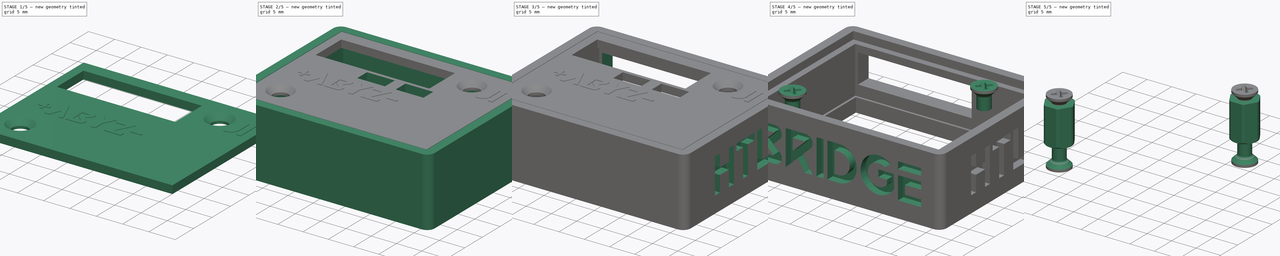
[diagram: build sequence overview — one tinted view per stage of 5, left to right]
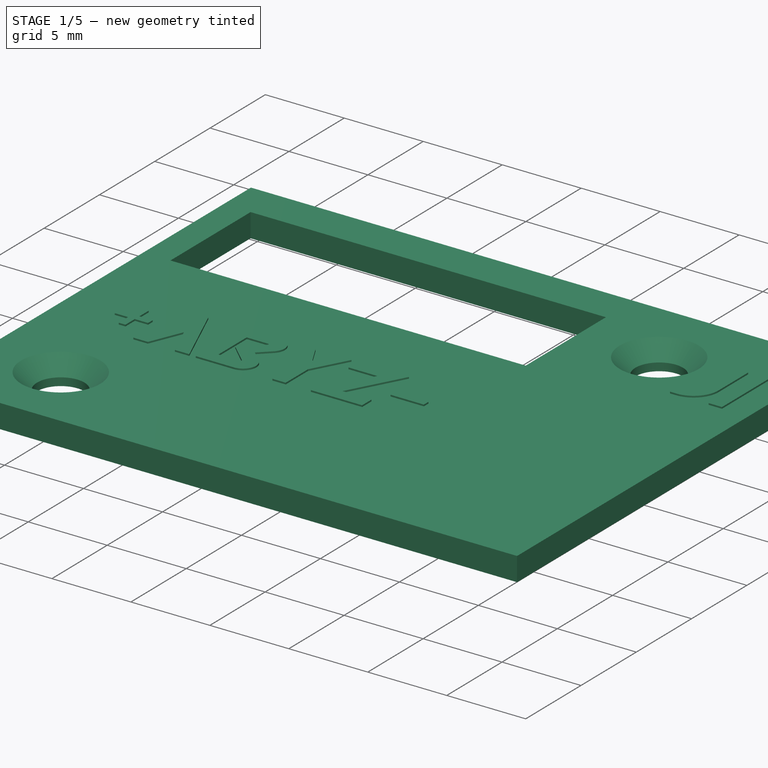
[diagram: stage 1 of 5 — iso view after this stage's code; geometry added in this stage tinted green]
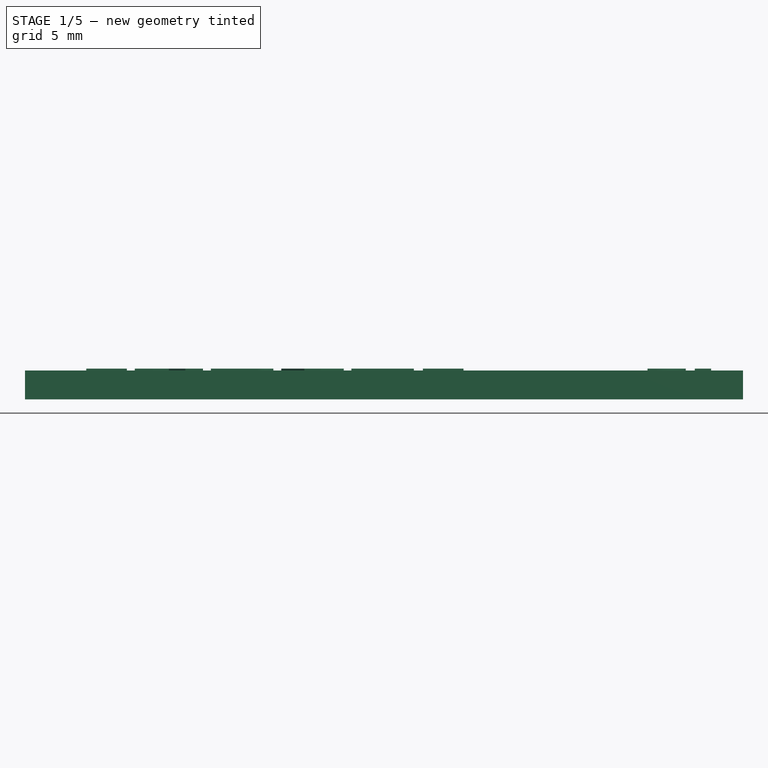
[diagram: stage 1 of 5 — front view after this stage's code; geometry added in this stage tinted green]
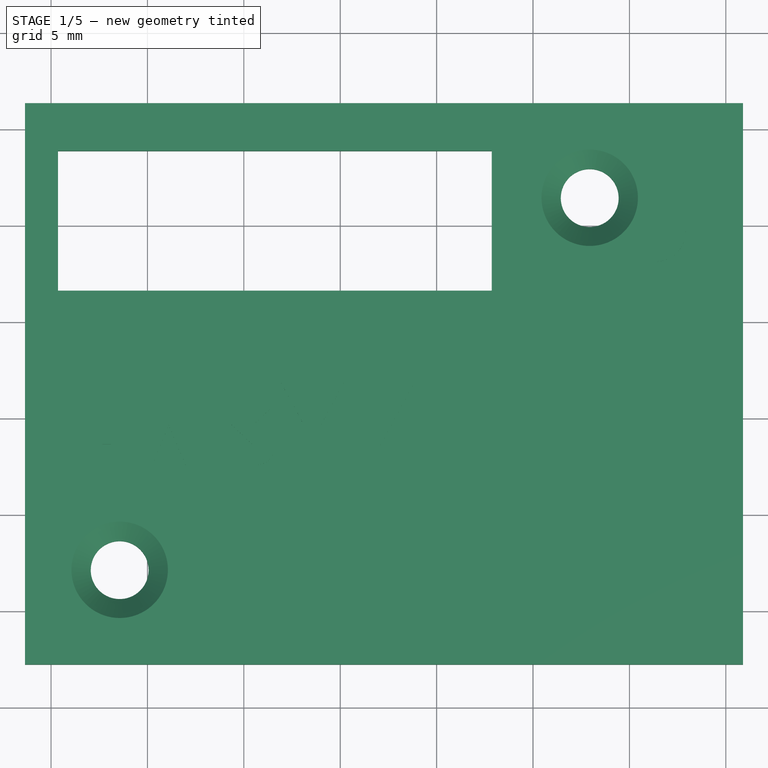
[diagram: stage 1 of 5 — top view after this stage's code; geometry added in this stage tinted green]
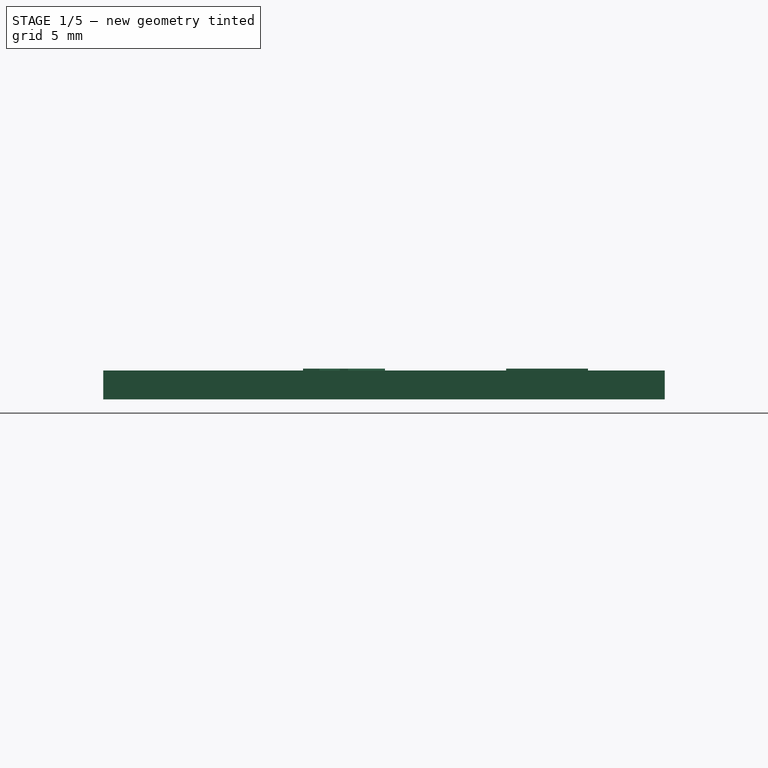
[diagram: stage 1 of 5 — right view after this stage's code; geometry added in this stage tinted green]
FCSTD DOCUMENT  (FreeCAD 1.0R39319 (Git))
Label: housing
License: All rights reserved
LicenseURL: https://en.wikipedia.org/wiki/All_rights_reserved
objects: Part::Feature×17, App::Part×8, Sketcher::SketchObject×7, PartDesign::Pocket×7, Part::FeaturePython×6, App::DocumentObjectGroupPython×6, Part::Part2DObjectPython×5, PartDesign::Pad×4, PartDesign::Chamfer×2, PartDesign::Body×2, Spreadsheet::Sheet×1, PartDesign::CoordinateSystem×1, TechDraw::DrawSVGTemplate×1, TechDraw::DrawProjGroupItem×1, TechDraw::DrawPage×1
note: 84 computed .brp shape members not serialized (recipe doc carries the construction recipe); baked Part::Feature solids carry a one-line shape summary decoded from their .brp

FEATURE [Sketcher::SketchObject] Sketch013
  ArcFitTolerance = 1e-06
  AttachmentOffset = pos=(0,0,9) rot=(0,0,1;0rad)
  AttachmentSupport = -> [XY_Plane027]
  FullyConstrained = true
  MakeInternals = false
  MapMode = 5
  Placement = pos=(0,0,9) rot=(0,0,1;0rad)
  expr: .AttachmentOffset.Base.z = -<<Parameter>>.Housing_Offset + <<Parameter>>.Housing_Height
  expr: Constraints[10] = 2 * (<<Parameter>>.Acrylglass_Inlay + <<Parameter>>.Housing_Tolerance) + <<Parameter>>.PCB_Width
  expr: Constraints[11] = 2 * (<<Parameter>>.Acrylglass_Inlay + <<Parameter>>.Housing_Tolerance) + <<Parameter>>.PCB_Length
  expr: Constraints[8] = <<Parameter>>.Acrylglass_Inlay + <<Parameter>>.Housing_Tolerance
  expr: Constraints[9] = <<Parameter>>.Acrylglass_Inlay + <<Parameter>>.Housing_Tolerance
  sketch-geometry (4):
    g0: LineSegment StartX=-1.45 StartY=1.45 StartZ=0 EndX=-1.45 EndY=-27.87 EndZ=0
    g1: LineSegment StartX=-1.45 StartY=-27.87 StartZ=0 EndX=35.99 EndY=-27.87 EndZ=0
    g2: LineSegment StartX=35.99 StartY=-27.87 StartZ=0 EndX=35.99 EndY=1.45 EndZ=0
    g3: LineSegment StartX=35.99 StartY=1.45 StartZ=0 EndX=-1.45 EndY=1.45 EndZ=0
  constraints (12):
    c: Coincident(g0,g1)
    c: Coincident(g1,g2)
    c: Coincident(g2,g3)
    c: Coincident(g3,g0)
    c: Vertical(g0)
    c: Vertical(g2)
    c: Horizontal(g1)
    c: Horizontal(g3)
    c: DistanceX(g0,g-1) = 1.45
    c: DistanceY(g-1,g0) = 1.45
    c: DistanceX(g3,g3) = 37.44
    c: DistanceY(g0,g0) = 29.32
FEATURE [Sketcher::SketchObject] Sketch014
  ArcFitTolerance = 1e-06
  AttachmentOffset = pos=(0,0,9) rot=(0,0,1;0rad)
  AttachmentSupport = -> [XY_Plane032]
  FullyConstrained = true
  MakeInternals = false
  MapMode = 5
  Placement = pos=(0,0,9) rot=(0,0,1;0rad)
  expr: .AttachmentOffset.Base.z = -<<Parameter>>.Housing_Offset + <<Parameter>>.Housing_Height
  expr: Constraints[10] = 2 * (<<Parameter>>.Acrylglass_Inlay + <<Parameter>>.Housing_Tolerance - <<Parameter>>.Acrylglass_Tolerance) + <<Parameter>>.PCB_Width
  expr: Constraints[11] = 2 * (<<Parameter>>.Acrylglass_Inlay + <<Parameter>>.Housing_Tolerance - <<Parameter>>.Acrylglass_Tolerance) + <<Parameter>>.PCB_Length
  expr: Constraints[12] = <<Parameter>>.Screw_X2
  expr: Constraints[13] = <<Parameter>>.Screw_Y2
  expr: Constraints[14] = <<Parameter>>.Screw_X1
  expr: Constraints[15] = <<Parameter>>.Screw_Y1
  expr: Constraints[17] = <<Parameter>>.Screw_Diameter
  expr: Constraints[26] = <<Parameter>>.Connector_X - <<Parameter>>.Connector_Width / 2
  expr: Constraints[27] = <<Parameter>>.Connector_Y - <<Parameter>>.Connector_Length / 2
  expr: Constraints[28] = <<Parameter>>.Connector_Length
  expr: Constraints[29] = <<Parameter>>.Connector_Width
  expr: Constraints[8] = <<Parameter>>.Acrylglass_Inlay + <<Parameter>>.Housing_Tolerance - <<Parameter>>.Acrylglass_Tolerance
  expr: Constraints[9] = <<Parameter>>.Acrylglass_Inlay + <<Parameter>>.Housing_Tolerance - <<Parameter>>.Acrylglass_Tolerance
  sketch-geometry (10):
    g0: LineSegment StartX=-1.35 StartY=1.35 StartZ=0 EndX=-1.35 EndY=-27.77 EndZ=0
    g1: LineSegment StartX=-1.35 StartY=-27.77 StartZ=0 EndX=35.89 EndY=-27.77 EndZ=0
    g2: LineSegment StartX=35.89 StartY=-27.77 StartZ=0 EndX=35.89 EndY=1.35 EndZ=0
    g3: LineSegment StartX=35.89 StartY=1.35 StartZ=0 EndX=-1.35 EndY=1.35 EndZ=0
    g4: Circle CenterX=27.94 CenterY=-3.56 CenterZ=0 NormalX=0 NormalY=0 NormalZ=1 AngleXU=0 Radius=1.5
    g5: Circle CenterX=3.56 CenterY=-22.86 CenterZ=0 NormalX=0 NormalY=0 NormalZ=1 AngleXU=0 Radius=1.5
    g6: LineSegment StartX=0.36 StartY=-1.125 StartZ=0 EndX=0.36 EndY=-8.375 EndZ=0
    g7: LineSegment StartX=0.36 StartY=-8.375 StartZ=0 EndX=22.86 EndY=-8.375 EndZ=0
    g8: LineSegment StartX=22.86 StartY=-8.375 StartZ=0 EndX=22.86 EndY=-1.125 EndZ=0
    g9: LineSegment StartX=22.86 StartY=-1.125 StartZ=0 EndX=0.36 EndY=-1.125 EndZ=0
  constraints (30):
    c: Coincident(g0,g1)
    c: Coincident(g1,g2)
    c: Coincident(g2,g3)
    c: Coincident(g3,g0)
    c: Vertical(g0)
    c: Vertical(g2)
    c: Horizontal(g1)
    c: Horizontal(g3)
    c: DistanceX(g0,g-1) = 1.35
    c: DistanceY(g-1,g0) = 1.35
    c: DistanceX(g3,g3) = 37.24
    c: DistanceY(g0,g0) = 29.12
    c: DistanceX(g-1,g5) = 3.56
    c: DistanceY(g5,g-1) = 22.86
    c: DistanceX(g-1,g4) = 27.94
    c: DistanceY(g4,g-1) = 3.56
    c: Equal(g4,g5)
    c: Diameter(g4) = 3
    c: Coincident(g6,g7)
    c: Coincident(g7,g8)
    c: Coincident(g8,g9)
    c: Coincident(g9,g6)
    c: Vertical(g6)
    c: Vertical(g8)
    c: Horizontal(g7)
    c: Horizontal(g9)
    c: DistanceX(g-1,g6) = 0.36
    c: DistanceY(g6,g-1) = 1.125
    c: DistanceY(g6,g6) = 7.25
    c: DistanceX(g9,g9) = 22.5
FEATURE [PartDesign::Pad] Pad001
  Direction = (0,0,1)
  Length = 1.5
  Length2 = 10
  Profile = -> Sketch014
  ReferenceAxis = -> Sketch014 [N_Axis]
  Refine = true
  Reversed = true
  Suppressed = false
  Type = 0
  expr: Length = <<Parameter>>.Acrylglass_Thickness
FEATURE [Part::Part2DObjectPython] ShapeString001  # Draft 2D object (typed FeaturePython)
  FontFile = ./Black Future.otf
  Fuse = false
  Justification = 4
  JustificationReference = 0
  KeepLeftMargin = false
  MakeFace = true
  ObliqueAngle = 0
  Placement = pos=(37.74,-13.21,2.25) rot=(0.57735,0.57735,0.57735;2.0944rad)
  ScaleToSize = true
  Size = 7
  String = HTL
  Tracking = 0
  expr: .Placement.Base.x = <<Parameter>>.PCB_Width + <<Parameter>>.Housing_Tolerance + <<Parameter>>.Housing_Border
  expr: .Placement.Base.y = -+<<Parameter>>.PCB_Length / 2
  expr: .Placement.Base.z = -<<Parameter>>.Housing_Offset + <<Parameter>>.Housing_Height / 2
  expr: Size = <<Parameter>>.Text_Size
  expr: String = <<Parameter>>.Text_HTL
FEATURE [Part::Part2DObjectPython] ShapeString002  # Draft 2D object (typed FeaturePython)
  FontFile = ./Black Future.otf
  Fuse = false
  Justification = 4
  JustificationReference = 0
  KeepLeftMargin = false
  MakeFace = true
  ObliqueAngle = 0
  Placement = pos=(17.27,-29.62,2.25) rot=(1,0,0;1.5708rad)
  ScaleToSize = true
  Size = 7
  String = BRIDGE
  Tracking = 0
  expr: .Placement.Base.x = <<Parameter>>.PCB_Width / 2
  expr: .Placement.Base.y = -(<<Parameter>>.PCB_Length + <<Parameter>>.Housing_Tolerance + <<Parameter>>.Housing_Border)
  expr: .Placement.Base.z = -<<Parameter>>.Housing_Offset + <<Parameter>>.Housing_Height / 2
  expr: Size = <<Parameter>>.Text_Size
  expr: String = <<Parameter>>.Text_BRIDGE
FEATURE [Part::Part2DObjectPython] ShapeString003  # Draft 2D object (typed FeaturePython)
  FontFile = ./Black Future.otf
  Fuse = false
  Justification = 3
  JustificationReference = 0
  KeepLeftMargin = false
  MakeFace = true
  ObliqueAngle = 0
  Placement = pos=(30.94,-4.75,9) rot=(0,0,1;0rad)
  ScaleToSize = true
  Size = 4.25
  String = J1
  Tracking = 0
  expr: .Placement.Base.x = <<Parameter>>.Screw_X1 + <<Parameter>>.Screw_Diameter
  expr: .Placement.Base.y = -<<Parameter>>.Connector_Y
  expr: .Placement.Base.z = -<<Parameter>>.Housing_Offset + <<Parameter>>.Housing_Height
  expr: Size = <<Parameter>>.Text_J1_Size
  expr: String = <<Parameter>>.Text_J1
FEATURE [Part::Part2DObjectPython] ShapeString004  # Draft 2D object (typed FeaturePython)
  FontFile = ./Black Future.otf
  Fuse = false
  Justification = 1
  JustificationReference = 0
  KeepLeftMargin = false
  MakeFace = true
  ObliqueAngle = 0
  Placement = pos=(11.61,-13.16,9) rot=(0,0,1;0rad)
  ScaleToSize = true
  Size = 4.25
  String = +ABYZ-
  Tracking = 0
  expr: .Placement.Base.x = <<Parameter>>.Connector_X
  expr: .Placement.Base.y = -<<Parameter>>.Jumper_Y - <<Parameter>>.Jumper_Length
  expr: .Placement.Base.z = -<<Parameter>>.Housing_Offset + <<Parameter>>.Housing_Height
  expr: Size = <<Parameter>>.Text_COM_Size
  expr: String = <<Parameter>>.Text_COM
FEATURE [PartDesign::Pad] Pad002
  BaseFeature = -> Pad001
  Direction = (0,0,1)
  Length = 0.1
  Length2 = 10
  Profile = -> ShapeString003
  ReferenceAxis = -> ShapeString003 [N_Axis]
  Refine = true
  Suppressed = false
  Type = 0
  expr: Length = 0.1
FEATURE [PartDesign::Pad] Pad003
  BaseFeature = -> Pad002
  Direction = (0,0,1)
  Length = 0.1
  Length2 = 10
  Profile = -> ShapeString004
  ReferenceAxis = -> ShapeString004 [N_Axis]
  Refine = true
  Suppressed = false
  Type = 0
FEATURE [App::Part] Part004  label="Assembly"
  Group = -> [Spacer,Spacer001,Screw,Screw001,Screw002,Screw003]
  Origin = -> Origin031
FEATURE [PartDesign::CoordinateSystem] Local_CS_565b
  AttacherType = Attacher::AttachEngine3D
  MapMode = 2
FEATURE [Part::Feature] Pcb_565b
  Placement = pos=(-144.78,76.2,0) rot=(0,0,1;0rad)
  shape: bbox 34.54 x 26.42 x 1.6 mm, 37 faces (baked)
FEATURE [Sketcher::SketchObject] PCB_Sketch_565b
  ArcFitTolerance = 1e-06
  FullyConstrained = false
  MakeInternals = false
  sketch-geometry (8):
    g0: LineSegment StartX=33.528 StartY=-1.8e-15 StartZ=0 EndX=1.016 EndY=0 EndZ=0
    g1: LineSegment StartX=34.544 StartY=-25.4 StartZ=0 EndX=34.544 EndY=-1.016 EndZ=0
    g2: LineSegment StartX=1.016 StartY=-26.416 StartZ=0 EndX=33.528 EndY=-26.416 EndZ=0
    g3: LineSegment StartX=-2e-16 StartY=-1.016 StartZ=0 EndX=-4e-16 EndY=-25.4 EndZ=0
    g4: ArcOfCircle CenterX=33.528 CenterY=-25.4 CenterZ=0 NormalX=0 NormalY=0 NormalZ=-1 AngleXU=-3.14159 Radius=1.016 StartAngle=0 EndAngle=1.57079
    g5: ArcOfCircle CenterX=1.016 CenterY=-1.016 CenterZ=0 NormalX=0 NormalY=0 NormalZ=-1 AngleXU=1.64556e-06 Radius=1.016 StartAngle=0 EndAngle=1.57079
    g6: ArcOfCircle CenterX=33.528 CenterY=-1.016 CenterZ=0 NormalX=0 NormalY=0 NormalZ=-1 AngleXU=1.5708 Radius=1.016 StartAngle=0 EndAngle=1.57079
    g7: ArcOfCircle CenterX=1.016 CenterY=-25.4 CenterZ=0 NormalX=0 NormalY=0 NormalZ=-1 AngleXU=-1.57079 Radius=1.016 StartAngle=0 EndAngle=1.57079
  constraints (8):
    c: Coincident(g3,g7)
    c: Coincident(g3,g5)
    c: Coincident(g2,g7)
    c: Coincident(g0,g5)
    c: Coincident(g2,g4)
    c: Coincident(g0,g6)
    c: Coincident(g1,g4)
    c: Coincident(g1,g6)
FEATURE [App::Part] Board_Geoms_565b
  Group = -> [Pcb_565b,PCB_Sketch_565b]
  Origin = -> Origin033
FEATURE [Part::Feature] Shape  label="J5_PinHeader_1x02_P254mm_Vertical_247cd4d46426"
  Placement = pos=(22.611,-10.414,0) rot=(0,0,-1;1.5708rad)
  shape: bbox 5.08 x 2.54 x 11.54 mm, 52 faces (baked)
FEATURE [Part::Feature] Shape001  label="C3_C_1206_3216Metric_dee17a1d5ba6"
  Placement = pos=(9.32,-16.829,0) rot=(0,0,1;0rad)
  shape: bbox 3.2 x 1.6 x 1.6 mm, 28 faces (baked)
FEATURE [Part::Feature] Shape002  label="R1_R_1206_3216Metric_e4c392e16771"
  Placement = pos=(14.986,-13.462,0) rot=(0,0,1;3.14159rad)
  shape: bbox 3.2 x 1.6 x 0.55 mm, 26 faces (baked)
FEATURE [Part::Feature] Shape003  label="U1_SOIC_14_39x87mm_P127mm_7c826e366b65"
  Placement = pos=(16.891,-19.304,0) rot=(0,0,1;1.5708rad)
  shape: bbox 8.7 x 6 x 1.75 mm, 246 faces (baked)
FEATURE [Part::Feature] Shape004  label="C1_CP_EIA_6032_28_Kemet_C_e5fc5bf9dc3b"
  Placement = pos=(24.633,-19.05,0) rot=(0,0,-1;1.5708rad)
  shape: bbox 3.328 x 6 x 2.8 mm, 46 faces (baked)
FEATURE [Part::Feature] Shape005  label="J3_PinHeader_1x02_P254mm_Vertical_8f4282685503"
  Placement = pos=(12.446,-10.414,0) rot=(0,0,1;1.5708rad)
  shape: bbox 5.08 x 2.54 x 11.54 mm, 52 faces (baked)
FEATURE [Part::Feature] Shape006  label="R2_R_1206_3216Metric_fd4cb68b9ab1"
  Placement = pos=(20.066,-13.462,0) rot=(0,0,1;0rad)
  shape: bbox 3.2 x 1.6 x 0.55 mm, 26 faces (baked)
FEATURE [Part::Feature] Shape007  label="J1_TerminalBlock_Phoenix_PT_15_6_35_H_1x06_P350mm_Horizontal_b8abcef818d7"
  Placement = pos=(20.434,-4.764,0) rot=(0,0,1;3.14159rad)
  shape: bbox 21.57 x 7.55 x 13.7 mm, 316 faces (baked)
FEATURE [Part::Feature] Shape008  label="C2_CP_EIA_6032_28_Kemet_C_82f09277ce7b"
  Placement = pos=(2.934,-13.335,0) rot=(0,0,-1;1.5708rad)
  shape: bbox 3.328 x 6 x 2.8 mm, 46 faces (baked)
FEATURE [App::Part] Top_565b
  Group = -> [Shape,Shape001,Shape002,Shape003,Shape004,Shape005,Shape006,Shape007,Shape008]
  Origin = -> Origin036
FEATURE [Part::Feature] Shape009  label="J4_PinSocket_1x08_P254mm_Vertical_36e3868fe61d"
  Placement = pos=(12.446,-24.6436,-1.6) rot=(0.707107,-0.707107,0;3.14159rad)
  shape: bbox 20.32 x 2.54 x 10.1 mm, 258 faces (baked)
FEATURE [Part::Feature] Shape010  label="J2_PinSocket_1x07_P254mm_Vertical_e5fd038025c4"
  Placement = pos=(33.02,-5.583,-1.6) rot=(0,1,0;3.14159rad)
  shape: bbox 2.54 x 17.78 x 10.1 mm, 227 faces (baked)
FEATURE [App::Part] Bot_565b
  Group = -> [Shape009,Shape010]
  Origin = -> Origin037
FEATURE [App::Part] Step_Models_565b
  Group = -> [Top_565b,Bot_565b]
  Origin = -> Origin035
FEATURE [App::Part] Board_565b  label="U3A_rs485"
  Group = -> [Local_CS_565b,Board_Geoms_565b,Step_Models_565b]
  Origin = -> Origin034
FEATURE [App::Part] Part  label="PCB"
  Group = -> [Board_565b]
  Origin = -> Origin
  expr: .Placement.Base.z = 0
FEATURE [PartDesign::Chamfer] Chamfer001
  Angle = 45
  Base = -> Pad003 [Edge81,Edge12]
  BaseFeature = -> Pad003
  ChamferType = 0
  FlipDirection = false
  Refine = true
  Size = 1
  Size2 = 1
  SupportTransform = false
  Suppressed = false
  UseAllEdges = false
  expr: Size = <<Parameter>>.Acrylglass_Chamfer
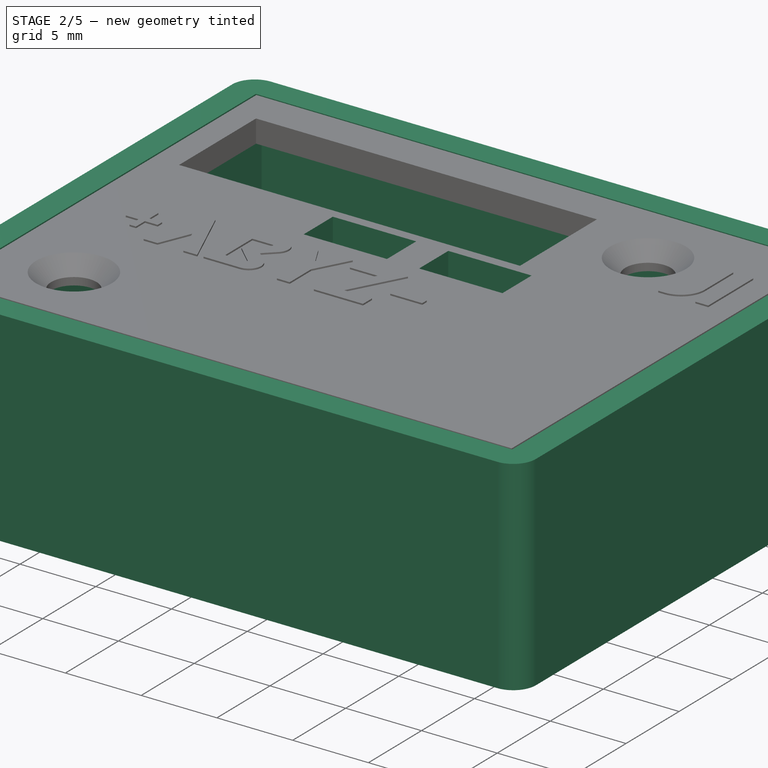
[diagram: stage 2 of 5 — iso view after this stage's code; geometry added in this stage tinted green]
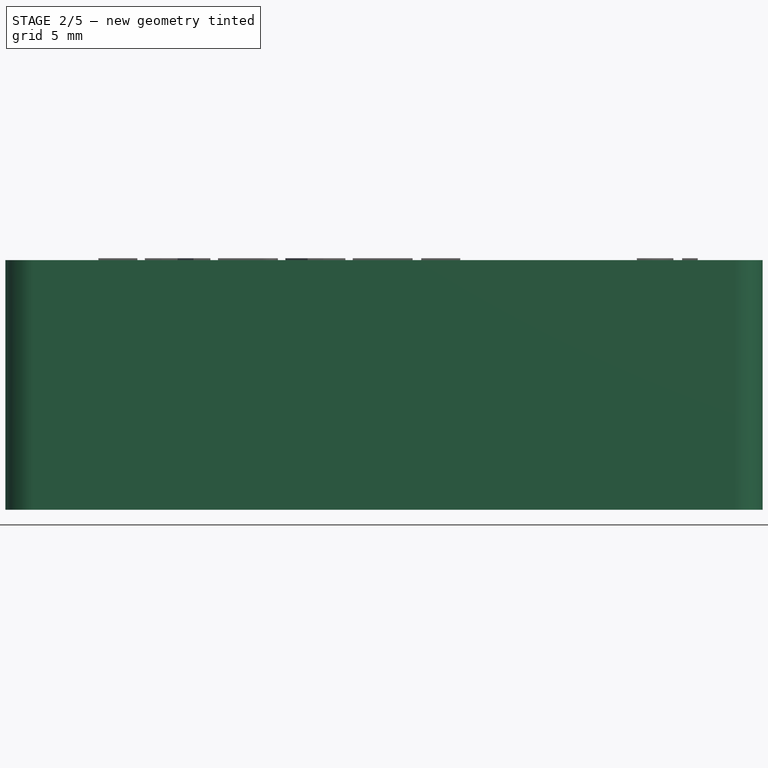
[diagram: stage 2 of 5 — front view after this stage's code; geometry added in this stage tinted green]
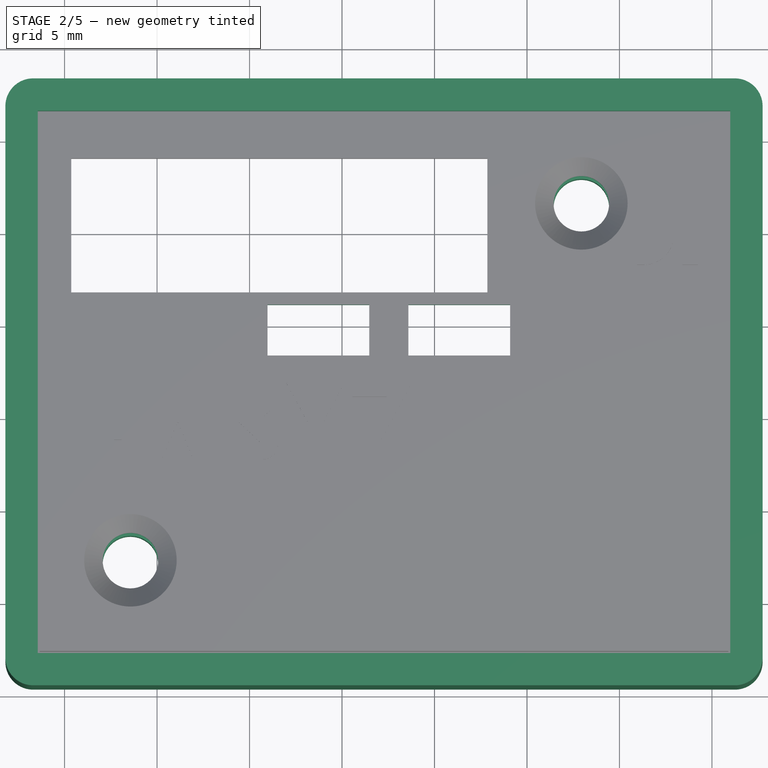
[diagram: stage 2 of 5 — top view after this stage's code; geometry added in this stage tinted green]
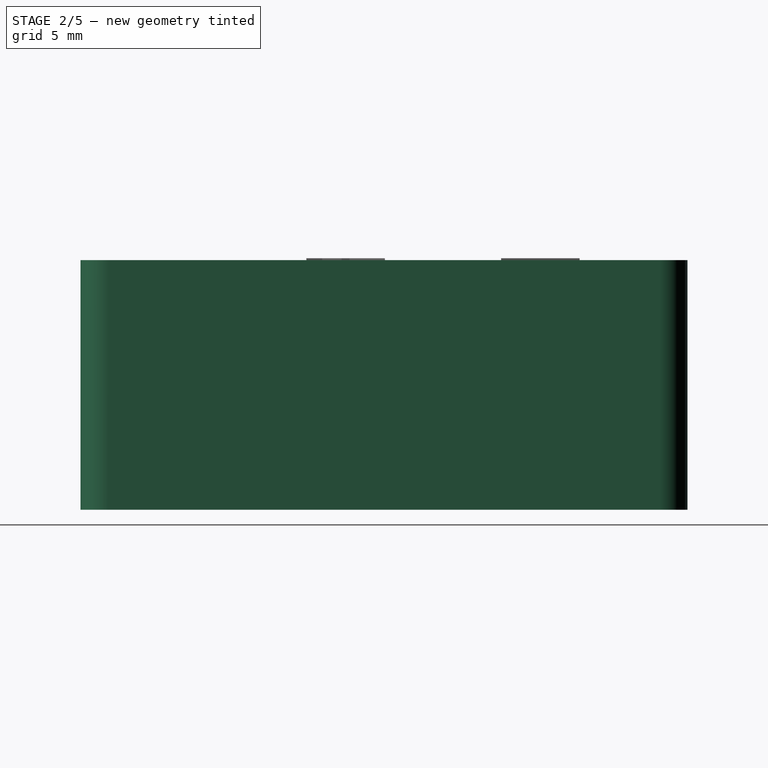
[diagram: stage 2 of 5 — right view after this stage's code; geometry added in this stage tinted green]
FEATURE [Spreadsheet::Sheet] Spreadsheet  label="Parameter"
  cells = A1='PCB; D1='Connector; F1='Jumper; H1='Mounting; J1='Diameter; A2='Width; B2(PCB_Width)=34.54; C2='X; D2(Connector_X)=11.61; E2='X1; F2(Jumper_X1)=13.72; H2='Screw1; I2='Screw2; J2(Screw_Diameter)=3; A3='Length; B3(PCB_Length)=26.42; C3='Y; D3(Connector_Y)=4.75; E3='X2; F3(Jumper_X2)=21.34; G3='X; H3(Screw_X1)=27.94; I3(Screw_X2)=3.56; J3='SW; A4='Thickness; B4(PCB_Thickness)=1.75; C4='Z; D4(Connector_Z)=3.25; E4='Y; F4(Jumper_Y)=10.41; G4='Y; H4(Screw_Y1)=3.56; I4(Screw_Y2)=22.86; J4(Screw_SW)=3; C5='Width; D5(Connector_Width)=22.5; E5='Width; F5(Jumper_Width)=5.5; C6='Length; D6(Connector_Length)=7.25; E6='Length; F6(Jumper_Length)=2.75; C7='Height; D7(Connector_Height)=5.75; A9='Housing; C9='Acrylglass; A10='Height; B10(Housing_Height)=13.5; C10='Thickness; D10(Acrylglass_Thickness)=1.5; A11='Offset; B11(Housing_Offset)=4.5; C11='Inlay; D11(Acrylglass_Inlay)=1.25; A12='Border; B12(Housing_Border)=3; C12='Tolerance; D12(Acrylglass_Tolerance)=0.1; A13='Floor; B13(Housing_Floor)=3; C13='Chamfer; D13(Acrylglass_Chamfer)=1; A14='Fillet; B14(Housing_Fillet)=1.5; A15='Tolerance; B15(Housing_Tolerance)=0.2; A16='Inlay; B16(Housing_Inlay)=0.25; A17='Screw_Platform; B17(Screw_Platform)=6; A18='Screw_Platform_Fillet; B18(Screw_Platform_Fillet)=1.5; B20='Text; C20='General Size; D20(Text_Size)=7; E20='Depth; F20(Text_Depth)=1.5; B21(Text_RS485)='RS485; C21(Text_BRIDGE)='BRIDGE; D21(Text_HTL)='HTL; E21(Text_Author)='G.RAF; F21(Text_J1)='J1; G21(Text_COM)='+ABYZ-; A22='Size; B22(Text_RS485_Size)=6; F22(Text_J1_Size)=4.25; G22(Text_COM_Size)==Text_J1_Size
FEATURE [Sketcher::SketchObject] Sketch012
  ArcFitTolerance = 1e-06
  AttachmentOffset = pos=(0,0,-4.5) rot=(0,0,1;0rad)
  AttachmentSupport = -> [XY_Plane027]
  FullyConstrained = true
  MakeInternals = false
  MapMode = 5
  Placement = pos=(0,0,-4.5) rot=(0,0,1;0rad)
  expr: .AttachmentOffset.Base.z = -<<Parameter>>.Housing_Offset
  expr: Constraints[11] = <<Parameter>>.Housing_Inlay
  expr: Constraints[12] = <<Parameter>>.Housing_Inlay
  expr: Constraints[13] = <<Parameter>>.PCB_Width - 2 * <<Parameter>>.Housing_Inlay
  expr: Constraints[33] = <<Parameter>>.Housing_Fillet
  expr: Constraints[34] = <<Parameter>>.Housing_Tolerance + <<Parameter>>.Housing_Border
  expr: Constraints[35] = <<Parameter>>.Housing_Tolerance + <<Parameter>>.Housing_Border
  expr: Constraints[36] = 2 * (<<Parameter>>.Housing_Border + <<Parameter>>.Housing_Tolerance) + <<Parameter>>.PCB_Width
  expr: Constraints[37] = 2 * (<<Parameter>>.Housing_Border + <<Parameter>>.Housing_Tolerance) + <<Parameter>>.PCB_Length
  expr: Constraints[49] = <<Parameter>>.PCB_Length - 2 * <<Parameter>>.Housing_Inlay
  expr: Constraints[50] = <<Parameter>>.Screw_Platform
  expr: Constraints[52] = <<Parameter>>.Screw_Platform
  expr: Constraints[54] = <<Parameter>>.Screw_X1 - <<Parameter>>.Screw_Platform / 2
  expr: Constraints[55] = <<Parameter>>.Screw_Platform
  expr: Constraints[56] = <<Parameter>>.Screw_Platform
  expr: Constraints[59] = <<Parameter>>.PCB_Length - 2 * <<Parameter>>.Housing_Inlay
  expr: Constraints[61] = <<Parameter>>.Screw_Diameter
  expr: Constraints[62] = <<Parameter>>.Screw_X1
  expr: Constraints[63] = <<Parameter>>.Screw_Y1
  expr: Constraints[64] = <<Parameter>>.Screw_X2
  expr: Constraints[65] = <<Parameter>>.Screw_Y2
  sketch-geometry (24):
    g0: LineSegment StartX=-3.2 StartY=1.7 StartZ=0 EndX=-3.2 EndY=-28.12 EndZ=0
    g1: LineSegment StartX=-1.7 StartY=-29.62 StartZ=0 EndX=36.24 EndY=-29.62 EndZ=0
    g2: LineSegment StartX=37.74 StartY=-28.12 StartZ=0 EndX=37.74 EndY=1.7 EndZ=0
    g3: LineSegment StartX=36.24 StartY=3.2 StartZ=0 EndX=-1.7 EndY=3.2 EndZ=0
    g4: LineSegment StartX=0.25 StartY=-0.25 StartZ=0 EndX=0.25 EndY=-20.17 EndZ=0
    g5: LineSegment StartX=6.25 StartY=-26.17 StartZ=0 EndX=34.29 EndY=-26.17 EndZ=0
    g6: LineSegment StartX=34.29 StartY=-26.17 StartZ=0 EndX=34.29 EndY=-0.25 EndZ=0
    g7: LineSegment StartX=34.29 StartY=-0.25 StartZ=0 EndX=30.94 EndY=-0.25 EndZ=0
    g8: ArcOfCircle CenterX=-1.7 CenterY=1.7 CenterZ=0 NormalX=0 NormalY=0 NormalZ=1 AngleXU=0 Radius=1.5 StartAngle=1.5708 EndAngle=3.14159
    g9: GeomPoint [constr] X=-3.2 Y=3.2 Z=0
    g10: ArcOfCircle CenterX=36.24 CenterY=1.7 CenterZ=0 NormalX=0 NormalY=0 NormalZ=1 AngleXU=0 Radius=1.5 StartAngle=0 EndAngle=1.5708
    g11: GeomPoint [constr] X=37.74 Y=3.2 Z=0
    g12: ArcOfCircle CenterX=36.24 CenterY=-28.12 CenterZ=0 NormalX=0 NormalY=0 NormalZ=1 AngleXU=0 Radius=1.5 StartAngle=4.71239 EndAngle=6.28319
    g13: GeomPoint [constr] X=37.74 Y=-29.62 Z=0
    g14: ArcOfCircle CenterX=-1.7 CenterY=-28.12 CenterZ=0 NormalX=0 NormalY=0 NormalZ=1 AngleXU=0 Radius=1.5 StartAngle=3.14159 EndAngle=4.71239
    g15: GeomPoint [constr] X=-3.2 Y=-29.62 Z=0
    g16: LineSegment StartX=6.25 StartY=-26.17 StartZ=0 EndX=6.25 EndY=-20.17 EndZ=0
    g17: LineSegment StartX=6.25 StartY=-20.17 StartZ=0 EndX=0.25 EndY=-20.17 EndZ=0
    g18: LineSegment StartX=24.94 StartY=-0.25 StartZ=0 EndX=24.94 EndY=-6.25 EndZ=0
    g19: LineSegment StartX=24.94 StartY=-6.25 StartZ=0 EndX=30.94 EndY=-6.25 EndZ=0
    g20: LineSegment StartX=30.94 StartY=-6.25 StartZ=0 EndX=30.94 EndY=-0.25 EndZ=0
    g21: LineSegment StartX=24.94 StartY=-0.25 StartZ=0 EndX=0.25 EndY=-0.25 EndZ=0
    g22: Circle CenterX=3.56 CenterY=-22.86 CenterZ=0 NormalX=0 NormalY=0 NormalZ=1 AngleXU=0 Radius=1.5
    g23: Circle CenterX=27.94 CenterY=-3.56 CenterZ=0 NormalX=0 NormalY=0 NormalZ=1 AngleXU=0 Radius=1.5
  constraints (66):
    c: Vertical(g0)
    c: Vertical(g2)
    c: Horizontal(g1)
    c: Horizontal(g3)
    c: Coincident(g5,g6)
    c: Coincident(g6,g7)
    c: Coincident(g21,g4)
    c: Vertical(g4)
    c: Vertical(g6)
    c: Horizontal(g5)
    c: Horizontal(g7)
    c: DistanceX(g-1,g4) = 0.25
    c: DistanceY(g4,g-1) = 0.25
    c: DistanceX(g21,g7) = 34.04
    c: PointOnObject(g9,g3)
    c: PointOnObject(g9,g0)
    c: Tangent(g3,g8) = -1.5708
    c: Tangent(g0,g8) = -1.5708
    c: PointOnObject(g11,g3)
    c: PointOnObject(g11,g2)
    c: Tangent(g3,g10) = -1.5708
    c: Tangent(g2,g10) = -1.5708
    c: PointOnObject(g13,g2)
    c: PointOnObject(g13,g1)
    c: Tangent(g2,g12) = -1.5708
    c: Tangent(g1,g12) = -1.5708
    c: PointOnObject(g15,g1)
    c: PointOnObject(g15,g0)
    c: Tangent(g1,g14) = -1.5708
    c: Tangent(g0,g14) = -1.5708
    c: Equal(g8,g10)
    c: Equal(g10,g12)
    c: Equal(g12,g14)
    c: Radius(g8) = 1.5
    c: DistanceX(g9,g-1) = 3.2
    c: DistanceY(g-1,g9) = 3.2
    c: DistanceX(g9,g11) = 40.94
    c: DistanceY(g15,g9) = 32.82
    c: Coincident(g16,g17)
    c: Vertical(g16)
    c: Horizontal(g17)
    c: Coincident(g18,g19)
    c: Coincident(g19,g20)
    c: Vertical(g18)
    c: Vertical(g20)
    c: Horizontal(g19)
    c: PointOnObject(g18,g21)
    c: PointOnObject(g7,g20)
    c: PointOnObject(g21,g18)
    c: DistanceY(g5,g4) = 25.92
    c: DistanceY(g16,g16) = 6
    c: Coincident(g17,g4)
    c: DistanceX(g17,g17) = 6
    c: Coincident(g5,g16)
    c: DistanceX(g-1,g18) = 24.94
    c: DistanceY(g18,g18) = 6
    c: DistanceX(g19,g19) = 6
    c: Horizontal(g21)
    c: Equal(g20,g18)
    c: DistanceY(g6,g6) = 25.92
    c: Equal(g23,g22)
    c: Diameter(g23) = 3
    c: DistanceX(g-1,g23) = 27.94
    c: DistanceY(g23,g-1) = 3.56
    c: DistanceX(g-1,g22) = 3.56
    c: DistanceY(g22,g-1) = 22.86
FEATURE [PartDesign::Pad] Pad
  Direction = (0,0,1)
  Length = 13.5
  Length2 = 10
  Profile = -> Sketch012
  ReferenceAxis = -> Sketch012 [N_Axis]
  Refine = true
  Suppressed = false
  Type = 0
  expr: Length = <<Parameter>>.Housing_Height
FEATURE [Sketcher::SketchObject] Sketch
  ArcFitTolerance = 1e-06
  AttachmentOffset = pos=(0,0,-1.75) rot=(0,0,1;0rad)
  AttachmentSupport = -> [XY_Plane027]
  FullyConstrained = true
  MakeInternals = false
  MapMode = 5
  Placement = pos=(0,0,-1.75) rot=(0,0,1;0rad)
  expr: .AttachmentOffset.Base.z = -<<Parameter>>.PCB_Thickness
  expr: Constraints[10] = <<Parameter>>.Housing_Tolerance * 2 + <<Parameter>>.PCB_Length
  expr: Constraints[11] = <<Parameter>>.Housing_Tolerance * 2 + <<Parameter>>.PCB_Width
  expr: Constraints[8] = <<Parameter>>.Housing_Tolerance
  expr: Constraints[9] = <<Parameter>>.Housing_Tolerance
  sketch-geometry (4):
    g0: LineSegment StartX=-0.2 StartY=0.2 StartZ=0 EndX=-0.2 EndY=-26.62 EndZ=0
    g1: LineSegment StartX=-0.2 StartY=-26.62 StartZ=0 EndX=34.74 EndY=-26.62 EndZ=0
    g2: LineSegment StartX=34.74 StartY=-26.62 StartZ=0 EndX=34.74 EndY=0.2 EndZ=0
    g3: LineSegment StartX=34.74 StartY=0.2 StartZ=0 EndX=-0.2 EndY=0.2 EndZ=0
  constraints (12):
    c: Coincident(g0,g1)
    c: Coincident(g1,g2)
    c: Coincident(g2,g3)
    c: Coincident(g3,g0)
    c: Vertical(g0)
    c: Vertical(g2)
    c: Horizontal(g1)
    c: Horizontal(g3)
    c: DistanceX(g0,g-1) = 0.2
    c: DistanceY(g-1,g0) = 0.2
    c: DistanceY(g0,g0) = 26.82
    c: DistanceX(g3,g3) = 34.94
FEATURE [PartDesign::Pocket] Pocket
  BaseFeature = -> Pad
  Direction = (0,0,-1)
  Length = 7.25
  Length2 = 5
  Profile = -> Sketch
  ReferenceAxis = -> Sketch [N_Axis]
  Refine = true
  Reversed = true
  Suppressed = false
  Type = 1
  expr: Length = <<Parameter>>.Housing_Height - <<Parameter>>.Housing_Offset - <<Parameter>>.PCB_Thickness
FEATURE [PartDesign::Pocket] Pocket001
  BaseFeature = -> Pocket
  Direction = (0,0,-1)
  Length = 1.5
  Length2 = 5
  Profile = -> Sketch013
  ReferenceAxis = -> Sketch013 [N_Axis]
  Refine = true
  Suppressed = false
  Type = 0
  expr: Length = <<Parameter>>.Acrylglass_Thickness
FEATURE [PartDesign::Body] Body002  label="Case"
  AllowCompound = false
  Group = -> [Sketch012,Pad,Sketch,Pocket,Sketch013,Pocket001,ShapeString001,ShapeString002,Sketch015,Pocket002,Chamfer,Pocket003,Pocket004,ShapeString,Pocket005]
  Origin = -> Origin027
  Tip = -> Pocket005
FEATURE [Sketcher::SketchObject] Sketch016
  ArcFitTolerance = 1e-06
  AttachmentOffset = pos=(0,0,9) rot=(0,0,1;0rad)
  AttachmentSupport = -> [XY_Plane032]
  FullyConstrained = true
  MakeInternals = false
  MapMode = 5
  Placement = pos=(0,0,9) rot=(0,0,1;0rad)
  expr: .AttachmentOffset.Base.z = <<Parameter>>.Housing_Height - <<Parameter>>.Housing_Offset
  expr: Constraints[16] = <<Parameter>>.Jumper_Width
  expr: Constraints[17] = <<Parameter>>.Jumper_Width
  expr: Constraints[18] = <<Parameter>>.Jumper_Length
  expr: Constraints[19] = <<Parameter>>.Jumper_Length
  expr: Constraints[20] = <<Parameter>>.Jumper_Y - <<Parameter>>.Jumper_Length / 2
  expr: Constraints[21] = <<Parameter>>.Jumper_Y - <<Parameter>>.Jumper_Length / 2
  expr: Constraints[22] = <<Parameter>>.Jumper_X1 - <<Parameter>>.Jumper_Width / 2
  expr: Constraints[23] = <<Parameter>>.Jumper_X2 - <<Parameter>>.Jumper_Width / 2
  sketch-geometry (8):
    g0: LineSegment StartX=10.97 StartY=-9.035 StartZ=0 EndX=10.97 EndY=-11.785 EndZ=0
    g1: LineSegment StartX=10.97 StartY=-11.785 StartZ=0 EndX=16.47 EndY=-11.785 EndZ=0
    g2: LineSegment StartX=16.47 StartY=-11.785 StartZ=0 EndX=16.47 EndY=-9.035 EndZ=0
    g3: LineSegment StartX=16.47 StartY=-9.035 StartZ=0 EndX=10.97 EndY=-9.035 EndZ=0
    g4: LineSegment StartX=18.59 StartY=-9.035 StartZ=0 EndX=18.59 EndY=-11.785 EndZ=0
    g5: LineSegment StartX=18.59 StartY=-11.785 StartZ=0 EndX=24.09 EndY=-11.785 EndZ=0
    g6: LineSegment StartX=24.09 StartY=-11.785 StartZ=0 EndX=24.09 EndY=-9.035 EndZ=0
    g7: LineSegment StartX=24.09 StartY=-9.035 StartZ=0 EndX=18.59 EndY=-9.035 EndZ=0
  constraints (24):
    c: Coincident(g0,g1)
    c: Coincident(g1,g2)
    c: Coincident(g2,g3)
    c: Coincident(g3,g0)
    c: Vertical(g0)
    c: Vertical(g2)
    c: Horizontal(g1)
    c: Horizontal(g3)
    c: Coincident(g4,g5)
    c: Coincident(g5,g6)
    c: Coincident(g6,g7)
    c: Coincident(g7,g4)
    c: Vertical(g4)
    c: Vertical(g6)
    c: Horizontal(g5)
    c: Horizontal(g7)
    c: DistanceX(g3,g3) = 5.5
    c: DistanceX(g7,g7) = 5.5
    c: DistanceY(g0,g0) = 2.75
    c: DistanceY(g6,g6) = 2.75
    c: DistanceY(g0,g-1) = 9.035
    c: DistanceY(g4,g-1) = 9.035
    c: DistanceX(g-1,g0) = 10.97
    c: DistanceX(g-1,g4) = 18.59
FEATURE [PartDesign::Pocket] Pocket006
  BaseFeature = -> Chamfer001
  Direction = (0,0,-1)
  Length = 1.5
  Length2 = 5
  Profile = -> Sketch016
  ReferenceAxis = -> Sketch016 [N_Axis]
  Refine = true
  Suppressed = false
  Type = 0
  expr: Length = <<Parameter>>.Acrylglass_Thickness
FEATURE [PartDesign::Body] Body  label="Acrylglass"
  AllowCompound = false
  Group = -> [Sketch014,Pad001,ShapeString003,ShapeString004,Pad002,Pad003,Chamfer001,Sketch016,Pocket006]
  Origin = -> Origin032
  Tip = -> Pocket006
FEATURE [App::Part] Part003  label="Housing_RS485"
  Group = -> [Body002,Part004,Body]
  Origin = -> Origin026
FEATURE [Part::Feature] trajectory_line
  shape: bbox 2e-07 x 2e-07 x 20 mm, 0 faces, 0 solids (baked)
FEATURE [App::DocumentObjectGroupPython] SimpleGroup  label="SimpleGroup000_Top_Screws"  # scripted group (container) (typed FeaturePython)
  AnimationStepTime = 0
  AnimationSteps = 1
  Distance = 30
  Group = -> [trajectory_line]
  Revolutions = 0
  dir_vectors = (2) [(0,0,1),(0,0,1)]
  rot_centers = (2) [(18.7054,-14.9143,9),(18.7054,-14.9143,9)]
  rot_vectors = (2) [(0,0,1),(0,0,1)]
FEATURE [Part::Feature] trajectory_line001
  shape: bbox 2e-07 x 2e-07 x 20 mm, 0 faces, 0 solids (baked)
FEATURE [App::DocumentObjectGroupPython] SimpleGroup001  label="SimpleGroup001_Acrylglass"  # scripted group (container) (typed FeaturePython)
  AnimationStepTime = 0
  AnimationSteps = 1
  Distance = 20
  Group = -> [trajectory_line001]
  Revolutions = 0
  dir_vectors = (1) [(0,0,1)]
  rot_centers = (1) [(18.7054,-14.9143,9)]
  rot_vectors = (1) [(0,0,1)]
FEATURE [Part::Feature] trajectory_line002
  shape: bbox 2e-07 x 2e-07 x 20 mm, 0 faces, 0 solids (baked)
FEATURE [App::DocumentObjectGroupPython] SimpleGroup002  label="SimpleGroup002_Spacer"  # scripted group (container) (typed FeaturePython)
  AnimationStepTime = 0
  AnimationSteps = 1
  Distance = 10
  Group = -> [trajectory_line002]
  Revolutions = 0
  dir_vectors = (2) [(0,0,1),(0,0,1)]
  rot_centers = (2) [(18.7054,-14.9143,9),(18.7054,-14.9143,9)]
  rot_vectors = (2) [(0,0,1),(0,0,1)]
FEATURE [Part::Feature] trajectory_line003
  shape: bbox 2e-07 x 2e-07 x 20 mm, 0 faces, 0 solids (baked)
FEATURE [App::DocumentObjectGroupPython] SimpleGroup003  label="SimpleGroup003_Bottom_Screws"  # scripted group (container) (typed FeaturePython)
  AnimationStepTime = 0
  AnimationSteps = 1
  Distance = 30
  Group = -> [trajectory_line003]
  Revolutions = 0
  dir_vectors = (2) [(0,0,-1),(0,0,-1)]
  rot_centers = (2) [(17.1462,-13.21,-4.5),(17.1462,-13.21,-4.5)]
  rot_vectors = (2) [(0,0,-1),(0,0,-1)]
FEATURE [Part::Feature] trajectory_line004
  shape: bbox 2e-07 x 2e-07 x 20 mm, 0 faces, 0 solids (baked)
FEATURE [App::DocumentObjectGroupPython] SimpleGroup004  label="SimpleGroup004_Housing"  # scripted group (container) (typed FeaturePython)
  AnimationStepTime = 0
  AnimationSteps = 1
  Distance = 15
  Group = -> [trajectory_line004]
  Revolutions = 0
  dir_vectors = (1) [(0,0,-1)]
  rot_centers = (1) [(17.1462,-13.21,-4.5)]
  rot_vectors = (1) [(0,0,-1)]
FEATURE [App::DocumentObjectGroupPython] ExplodedAssembly  # scripted group (container) (typed FeaturePython)
  AnimationStep = 0
  CurrentTrajectory = 0
  Group = -> [SimpleGroup,SimpleGroup001,SimpleGroup002,SimpleGroup003,SimpleGroup004]
  InAnimation = false
  RemoveAllTrajectories = false
  ResetAnimation = false
FEATURE [TechDraw::DrawSVGTemplate] Template001
  Height = 210
  Orientation = 1
  Template = C:/Program Files/FreeCAD/data/Mod/TechDraw/Templates/Default_Template_A4_Landscape.svg
  Width = 297
FEATURE [TechDraw::DrawProjGroupItem] View
  CoarseView = false
  Direction = (0,0,1)
  Focus = 100
  HardHidden = false
  IsoCount = 0
  IsoHidden = false
  IsoVisible = false
  LockPosition = false
  Perspective = false
  Rotation = 0
  RotationVector = (1,0,0)
  ScaleType = 0
  ScrubCount = 1
  SeamHidden = false
  SeamVisible = false
  SmoothHidden = false
  SmoothVisible = true
  Source = -> [Body]
  Type = 0
  X = 148.5
  XDirection = (1,0,0)
  Y = 105
FEATURE [TechDraw::DrawPage] Page001
  KeepUpdated = true
  NextBalloonIndex = 1
  ProjectionType = 0
  Template = -> Template001
  Views = -> [View]
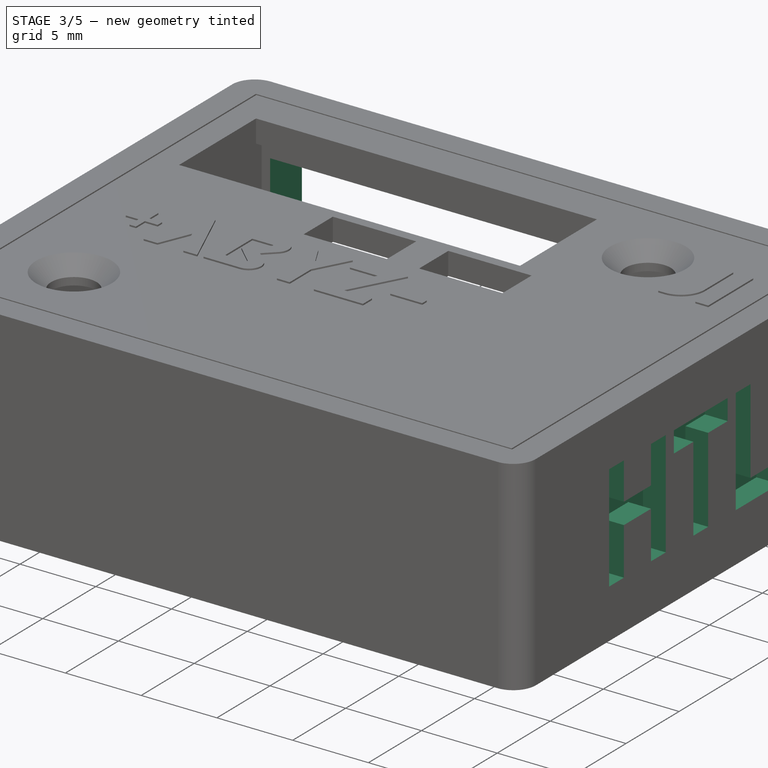
[diagram: stage 3 of 5 — iso view after this stage's code; geometry added in this stage tinted green]
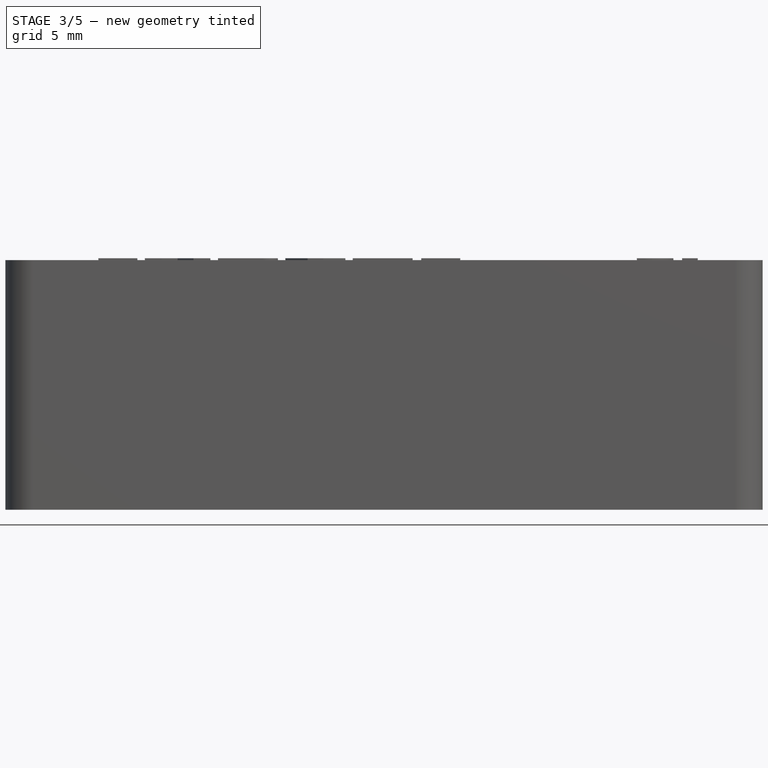
[diagram: stage 3 of 5 — front view after this stage's code; geometry added in this stage tinted green]
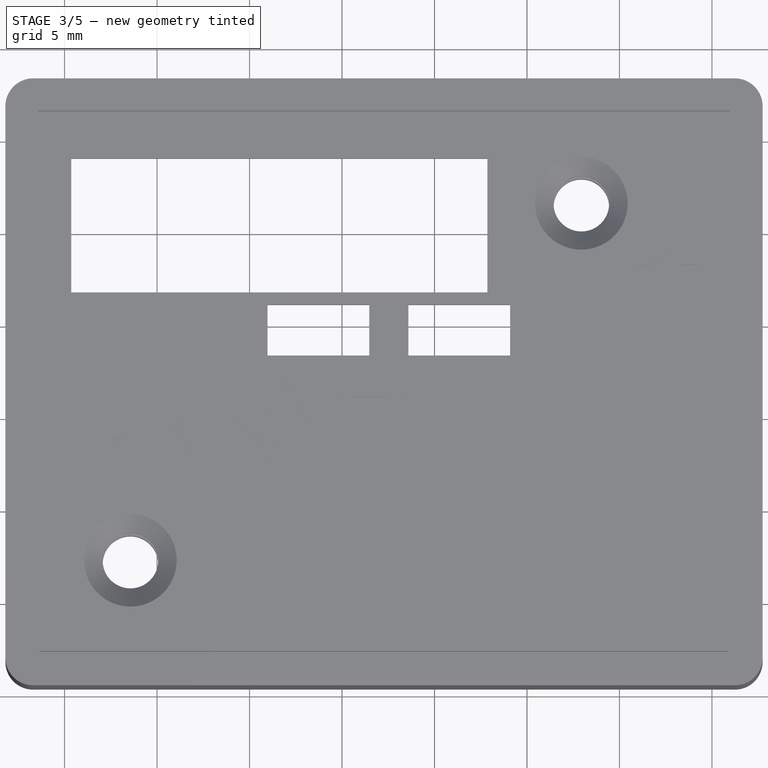
[diagram: stage 3 of 5 — top view after this stage's code; geometry added in this stage tinted green]
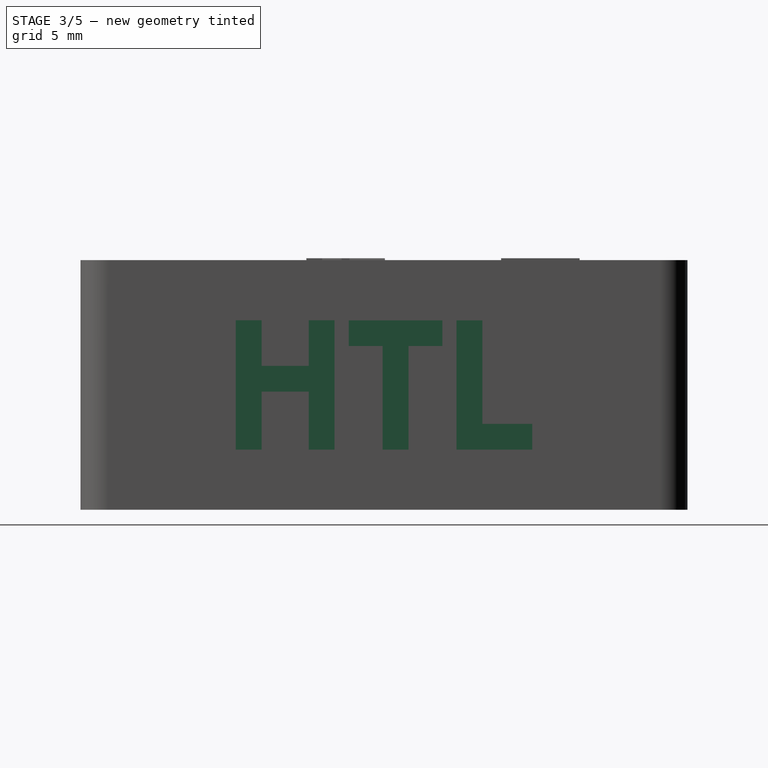
[diagram: stage 3 of 5 — right view after this stage's code; geometry added in this stage tinted green]
FEATURE [Sketcher::SketchObject] Sketch015
  ArcFitTolerance = 1e-06
  AttachmentOffset = pos=(0,0,-0.2) rot=(0,0,1;0rad)
  AttachmentSupport = -> [XZ_Plane027]
  FullyConstrained = true
  MakeInternals = false
  MapMode = 5
  Placement = pos=(0,0.2,0) rot=(1,0,0;1.5708rad)
  expr: .AttachmentOffset.Base.x = 0
  expr: .AttachmentOffset.Base.y = 0
  expr: .AttachmentOffset.Base.z = -<<Parameter>>.Housing_Tolerance
  expr: Constraints[10] = <<Parameter>>.Connector_Z - <<Parameter>>.Connector_Height / 2
  expr: Constraints[11] = <<Parameter>>.Connector_X - <<Parameter>>.Connector_Width / 2
  expr: Constraints[8] = <<Parameter>>.Connector_Width
  expr: Constraints[9] = <<Parameter>>.Connector_Height
  sketch-geometry (4):
    g0: LineSegment StartX=0.36 StartY=6.125 StartZ=0 EndX=0.36 EndY=0.375 EndZ=0
    g1: LineSegment StartX=0.36 StartY=0.375 StartZ=0 EndX=22.86 EndY=0.375 EndZ=0
    g2: LineSegment StartX=22.86 StartY=0.375 StartZ=0 EndX=22.86 EndY=6.125 EndZ=0
    g3: LineSegment StartX=22.86 StartY=6.125 StartZ=0 EndX=0.36 EndY=6.125 EndZ=0
  constraints (12):
    c: Coincident(g0,g1)
    c: Coincident(g1,g2)
    c: Coincident(g2,g3)
    c: Coincident(g3,g0)
    c: Vertical(g0)
    c: Vertical(g2)
    c: Horizontal(g1)
    c: Horizontal(g3)
    c: DistanceX(g3,g3) = 22.5
    c: DistanceY(g0,g0) = 5.75
    c: DistanceY(g-1,g0) = 0.375
    c: DistanceX(g-1,g0) = 0.36
FEATURE [PartDesign::Pocket] Pocket002
  BaseFeature = -> Pocket001
  Direction = (0,1,-2e-16)
  Length = 3
  Length2 = 5
  Profile = -> Sketch015
  ReferenceAxis = -> Sketch015 [N_Axis]
  Refine = true
  Suppressed = false
  Type = 0
  expr: Length = <<Parameter>>.Housing_Border
FEATURE [PartDesign::Chamfer] Chamfer
  Angle = 45
  Base = -> Pocket002 [Edge27,Edge26]
  BaseFeature = -> Pocket002
  ChamferType = 0
  FlipDirection = false
  Refine = true
  Size = 1
  Size2 = 1
  SupportTransform = false
  Suppressed = false
  UseAllEdges = false
  expr: Size = <<Parameter>>.Acrylglass_Chamfer
FEATURE [PartDesign::Pocket] Pocket003
  BaseFeature = -> Chamfer
  Direction = (-1,-1e-16,1e-16)
  Length = 1.5
  Length2 = 5
  Profile = -> ShapeString001
  ReferenceAxis = -> ShapeString001 [N_Axis]
  Refine = true
  Suppressed = false
  Type = 0
  expr: Length = <<Parameter>>.Text_Depth
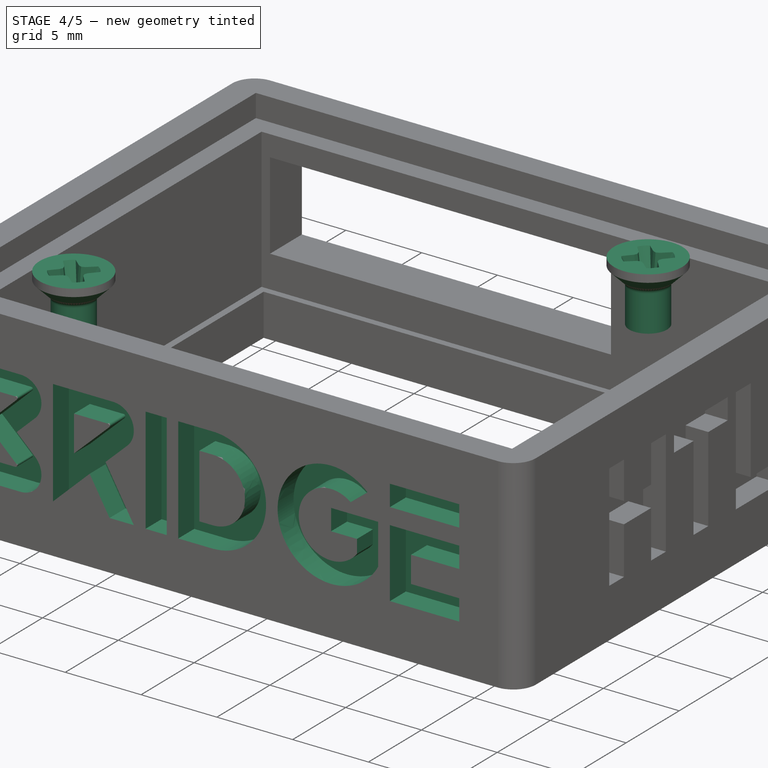
[diagram: stage 4 of 5 — iso view after this stage's code; geometry added in this stage tinted green]
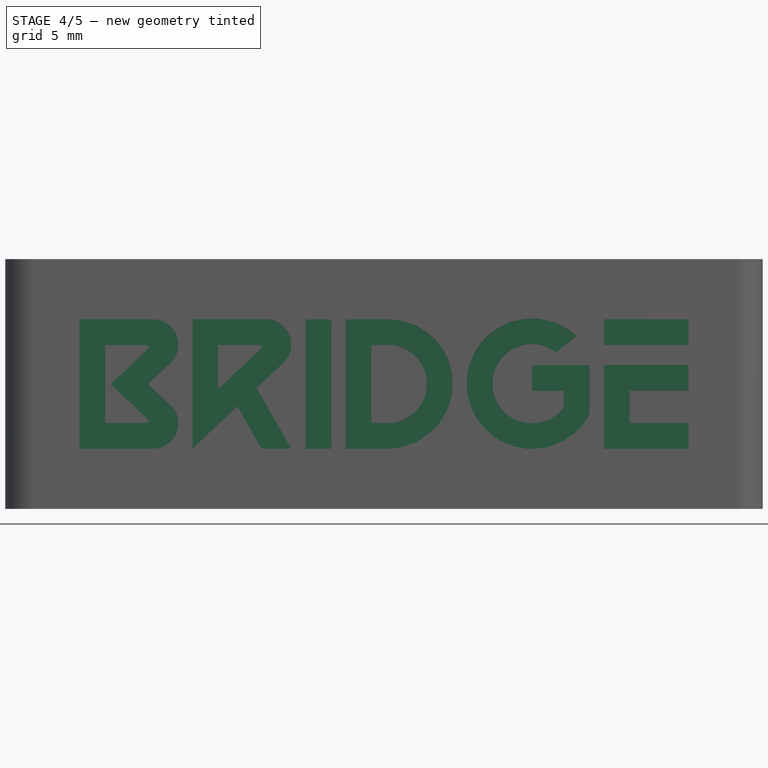
[diagram: stage 4 of 5 — front view after this stage's code; geometry added in this stage tinted green]
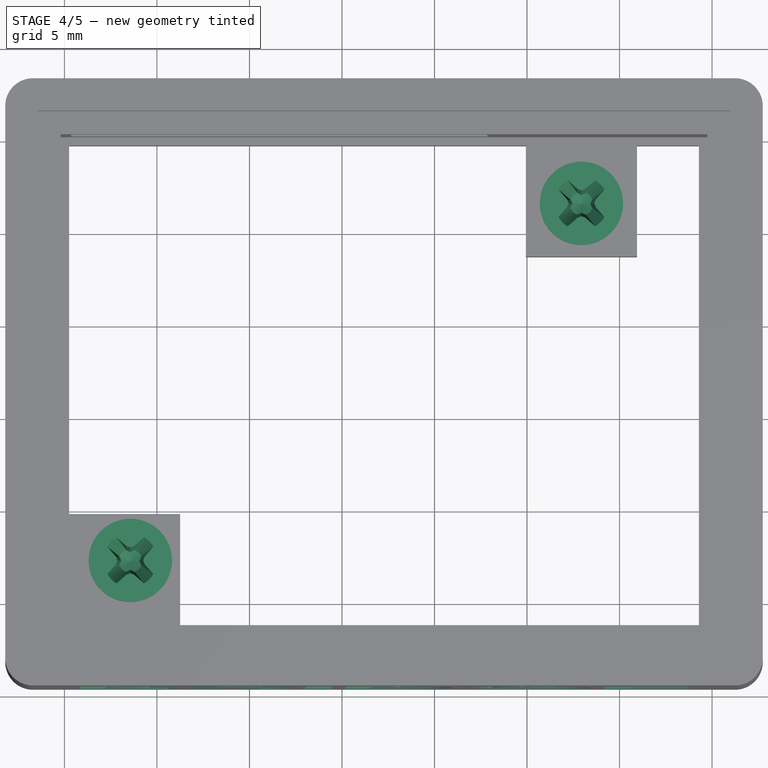
[diagram: stage 4 of 5 — top view after this stage's code; geometry added in this stage tinted green]
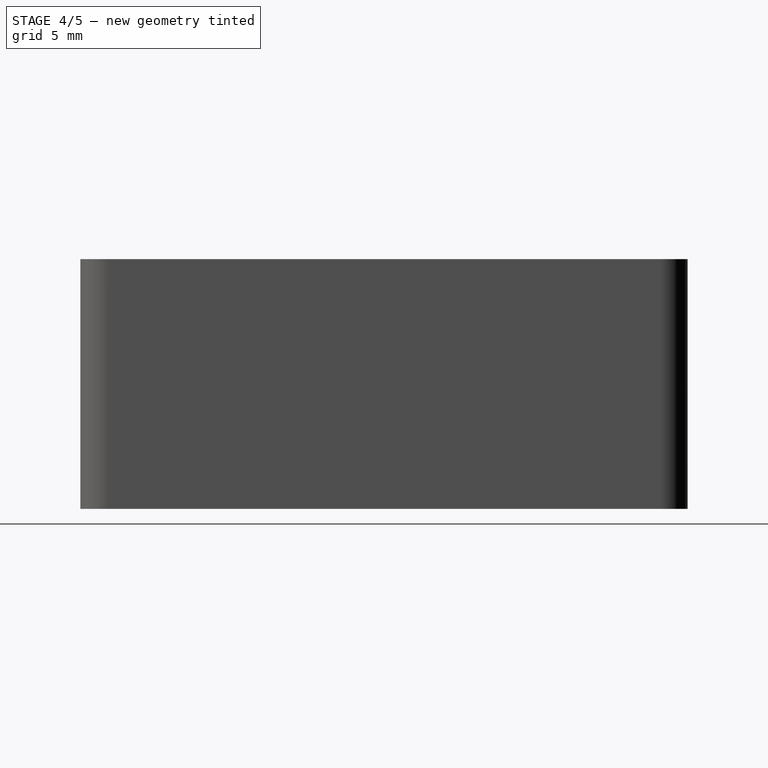
[diagram: stage 4 of 5 — right view after this stage's code; geometry added in this stage tinted green]
FEATURE [Part::FeaturePython] Screw002  label="M2.5x4-Screw"  # WARN: FeaturePython — macro-defined, semantics opaque (R4)
  BaseObject = -> Body [Chamfer001.Edge1]
  Diameter = 3
  Invert = false
  LeftHanded = false
  Length = 1
  LengthCustom = 4
  MatchOuter = false
  OffsetAngle = 0
  Placement = pos=(27.94,-3.56,9) rot=(0,0,1;0rad)
  Thread = false
  Type = 78
FEATURE [Part::FeaturePython] Screw003  label="M2.5x4-Screw001"  # WARN: FeaturePython — macro-defined, semantics opaque (R4)
  BaseObject = -> Body [Chamfer001.Edge74]
  Diameter = 3
  Invert = false
  LeftHanded = false
  Length = 1
  LengthCustom = 4
  MatchOuter = false
  OffsetAngle = 0
  Placement = pos=(3.56,-22.86,9) rot=(0,0,1;0rad)
  Thread = false
  Type = 78
FEATURE [PartDesign::Pocket] Pocket004
  BaseFeature = -> Pocket003
  Direction = (0,1,0)
  Length = 1.5
  Length2 = 5
  Profile = -> ShapeString002
  ReferenceAxis = -> ShapeString002 [N_Axis]
  Refine = true
  Suppressed = false
  Type = 0
  expr: Length = <<Parameter>>.Text_Depth
FEATURE [Part::Part2DObjectPython] ShapeString  # Draft 2D object (typed FeaturePython)
  FontFile = ./Black Future.otf
  Fuse = false
  Justification = 4
  JustificationReference = 0
  KeepLeftMargin = false
  MakeFace = true
  ObliqueAngle = 0
  Placement = pos=(-3.2,-13.21,2.25) rot=(0.57735,-0.57735,-0.57735;2.0944rad)
  ScaleToSize = true
  Size = 6
  String = RS485
  Tracking = 0
  expr: .Placement.Base.x = -(<<Parameter>>.Housing_Tolerance + <<Parameter>>.Housing_Border)
  expr: .Placement.Base.y = -<<Parameter>>.PCB_Length / 2
  expr: .Placement.Base.z = <<Parameter>>.Housing_Height / 2 - <<Parameter>>.Housing_Offset
  expr: Size = <<Parameter>>.Text_RS485_Size
  expr: String = <<Parameter>>.Text_RS485
FEATURE [PartDesign::Pocket] Pocket005
  BaseFeature = -> Pocket004
  Direction = (1,-1e-16,1e-16)
  Length = 1.5
  Length2 = 5
  Profile = -> ShapeString
  ReferenceAxis = -> ShapeString [N_Axis]
  Refine = true
  Suppressed = false
  Type = 0
  expr: Length = <<Parameter>>.Text_Depth
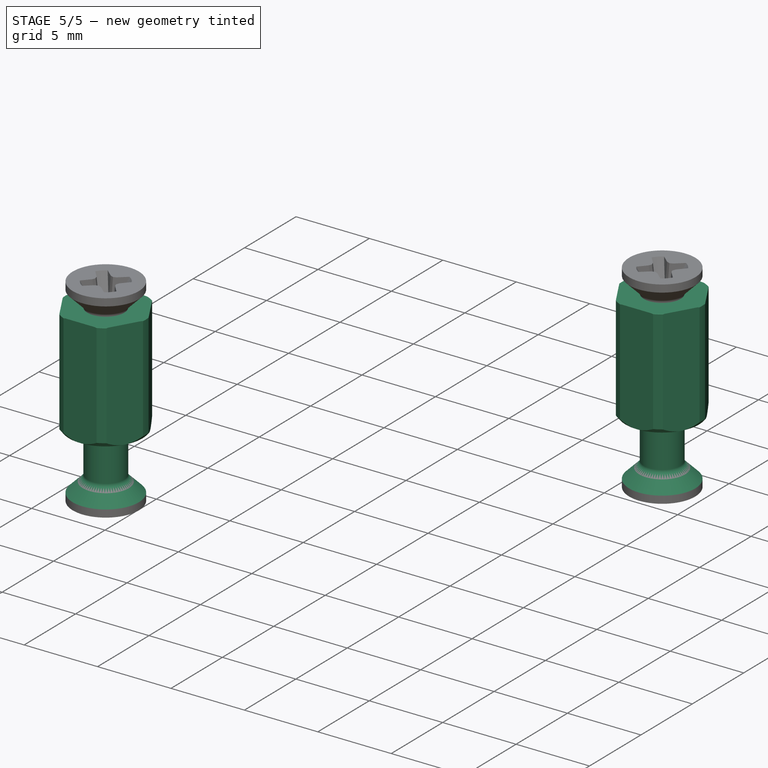
[diagram: stage 5 of 5 — iso view after this stage's code; geometry added in this stage tinted green]
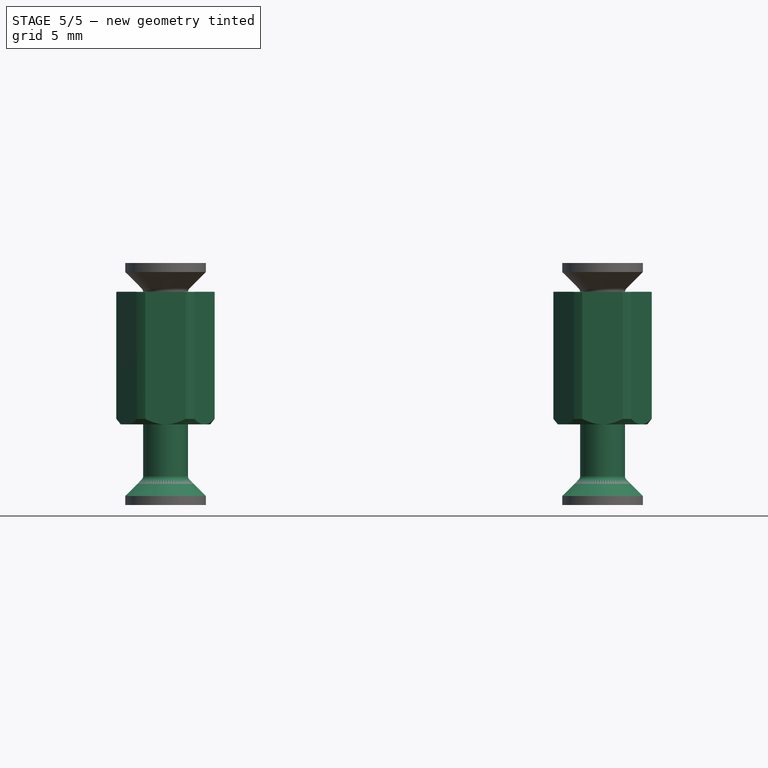
[diagram: stage 5 of 5 — front view after this stage's code; geometry added in this stage tinted green]
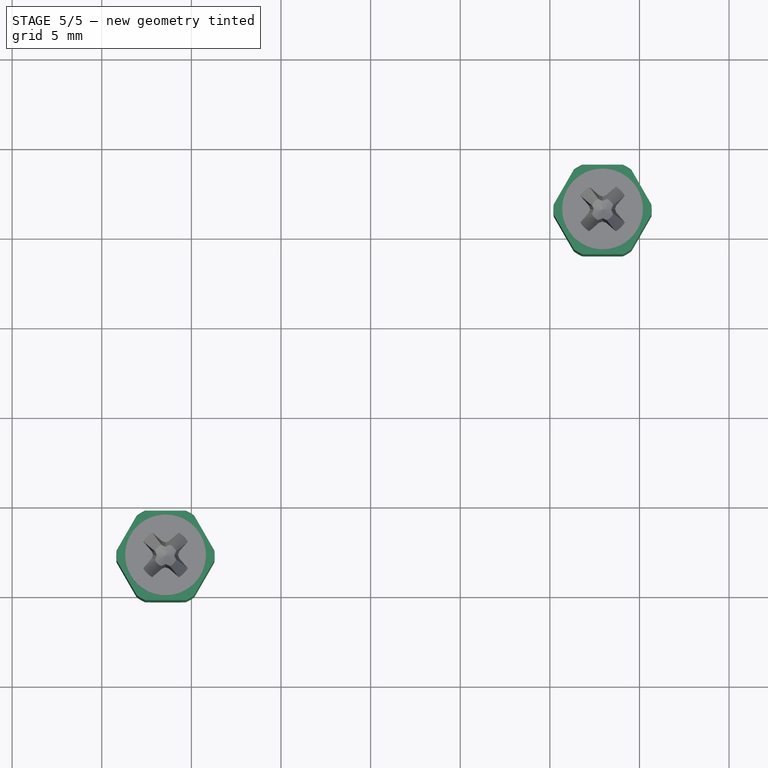
[diagram: stage 5 of 5 — top view after this stage's code; geometry added in this stage tinted green]
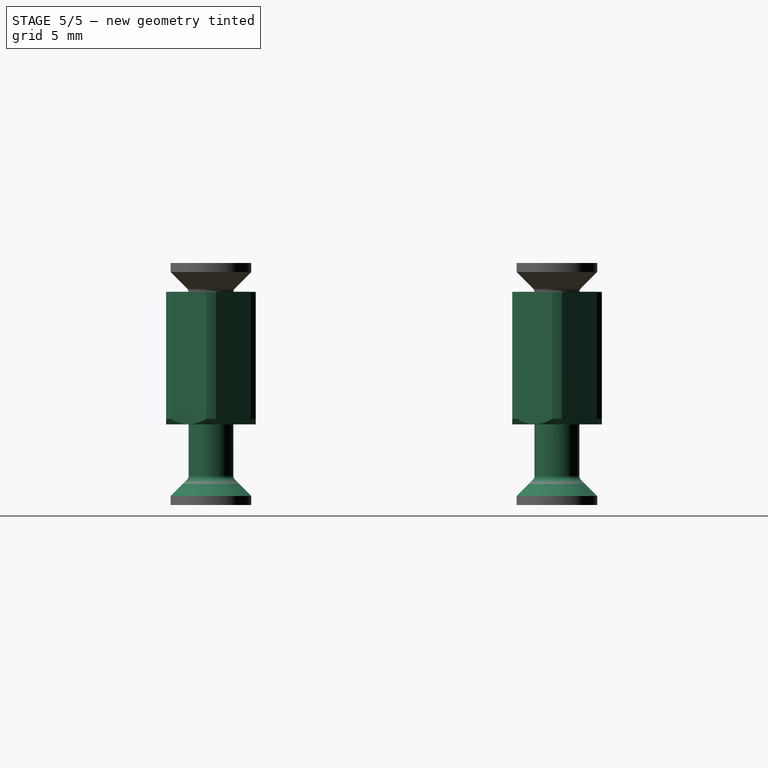
[diagram: stage 5 of 5 — right view after this stage's code; geometry added in this stage tinted green]
FEATURE [Part::FeaturePython] Spacer  label="M2.5x7.5x5-Spacer"  # WARN: FeaturePython — macro-defined, semantics opaque (R4)
  BaseObject = -> Part [Board_48e6.Board_Geoms_48e6.Pcb_48e6.Edge104]
  Diameter = 1
  Invert = false
  LeftHanded = false
  Length = 9
  LengthCustom = 7.5
  MatchOuter = false
  OffsetAngle = 0
  Placement = pos=(27.94,-3.556,0) rot=(0,0,1;0rad)
  Thread = false
  Type = 0
  Width = 0
FEATURE [Part::FeaturePython] Spacer001  label="M2.5x7.5x5-Spacer001"  # WARN: FeaturePython — macro-defined, semantics opaque (R4)
  BaseObject = -> Part [Board_48e6.Board_Geoms_48e6.Pcb_48e6.Edge26]
  Diameter = 1
  Invert = false
  LeftHanded = false
  Length = 9
  LengthCustom = 7.5
  MatchOuter = false
  OffsetAngle = 0
  Placement = pos=(3.556,-22.86,0) rot=(0,0,1;0rad)
  Thread = false
  Type = 0
  Width = 0
FEATURE [Part::FeaturePython] Screw  label="M2.5x8-Screw"  # WARN: FeaturePython — macro-defined, semantics opaque (R4)
  BaseObject = -> Body002 [Chamfer.Edge20]
  Diameter = 3
  Invert = true
  LeftHanded = false
  Length = 4
  LengthCustom = 8
  MatchOuter = false
  OffsetAngle = 0
  Placement = pos=(27.94,-3.56,-4.5) rot=(-1,0,0;3.14159rad)
  Thread = false
  Type = 78
FEATURE [Part::FeaturePython] Screw001  label="M2.5x8-Screw001"  # WARN: FeaturePython — macro-defined, semantics opaque (R4)
  BaseObject = -> Body002 [Chamfer.Edge1]
  Diameter = 3
  Invert = true
  LeftHanded = false
  Length = 4
  LengthCustom = 8
  MatchOuter = false
  OffsetAngle = 0
  Placement = pos=(3.56,-22.86,-4.5) rot=(-1,0,0;3.14159rad)
  Thread = false
  Type = 78
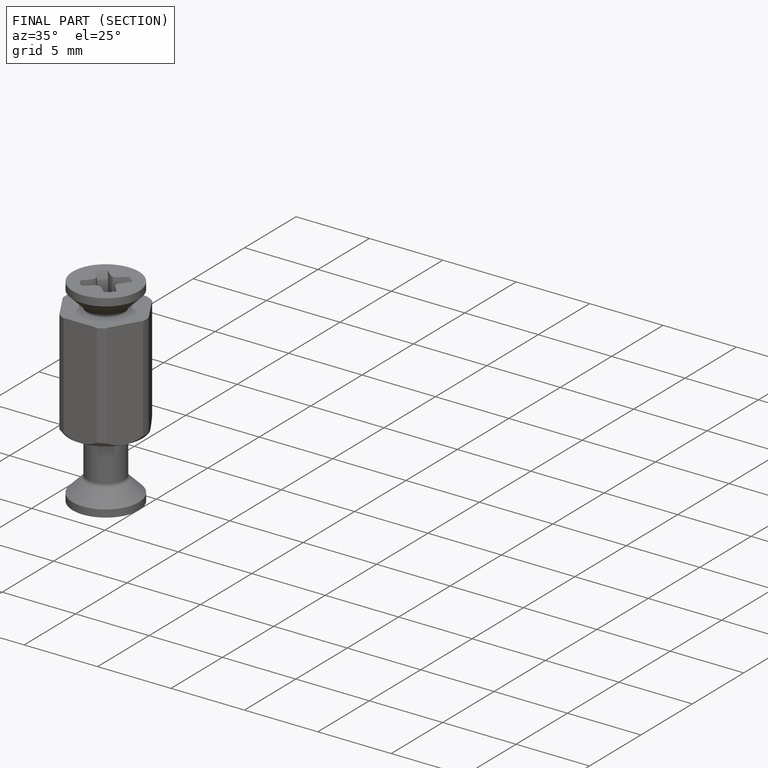
[diagram: finished part — half-section view (interior)]
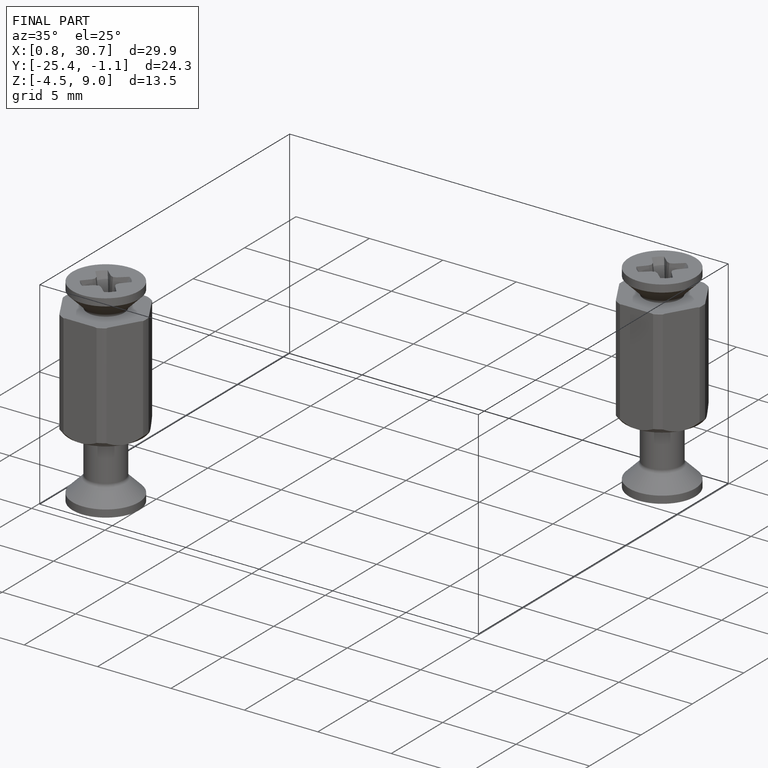
[diagram: finished part — iso view with bounding-box wireframe]
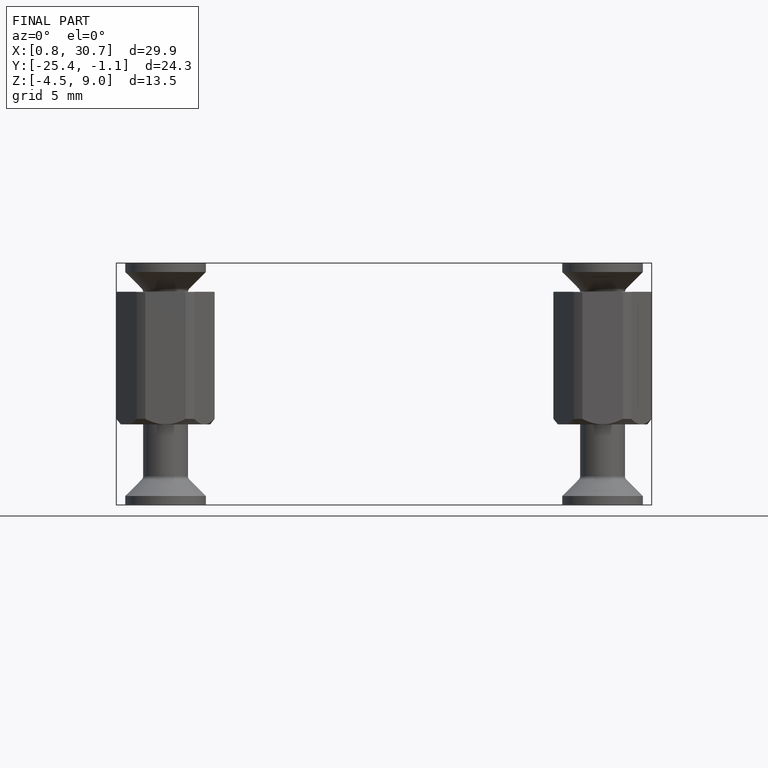
[diagram: finished part — front view with bounding-box wireframe]
